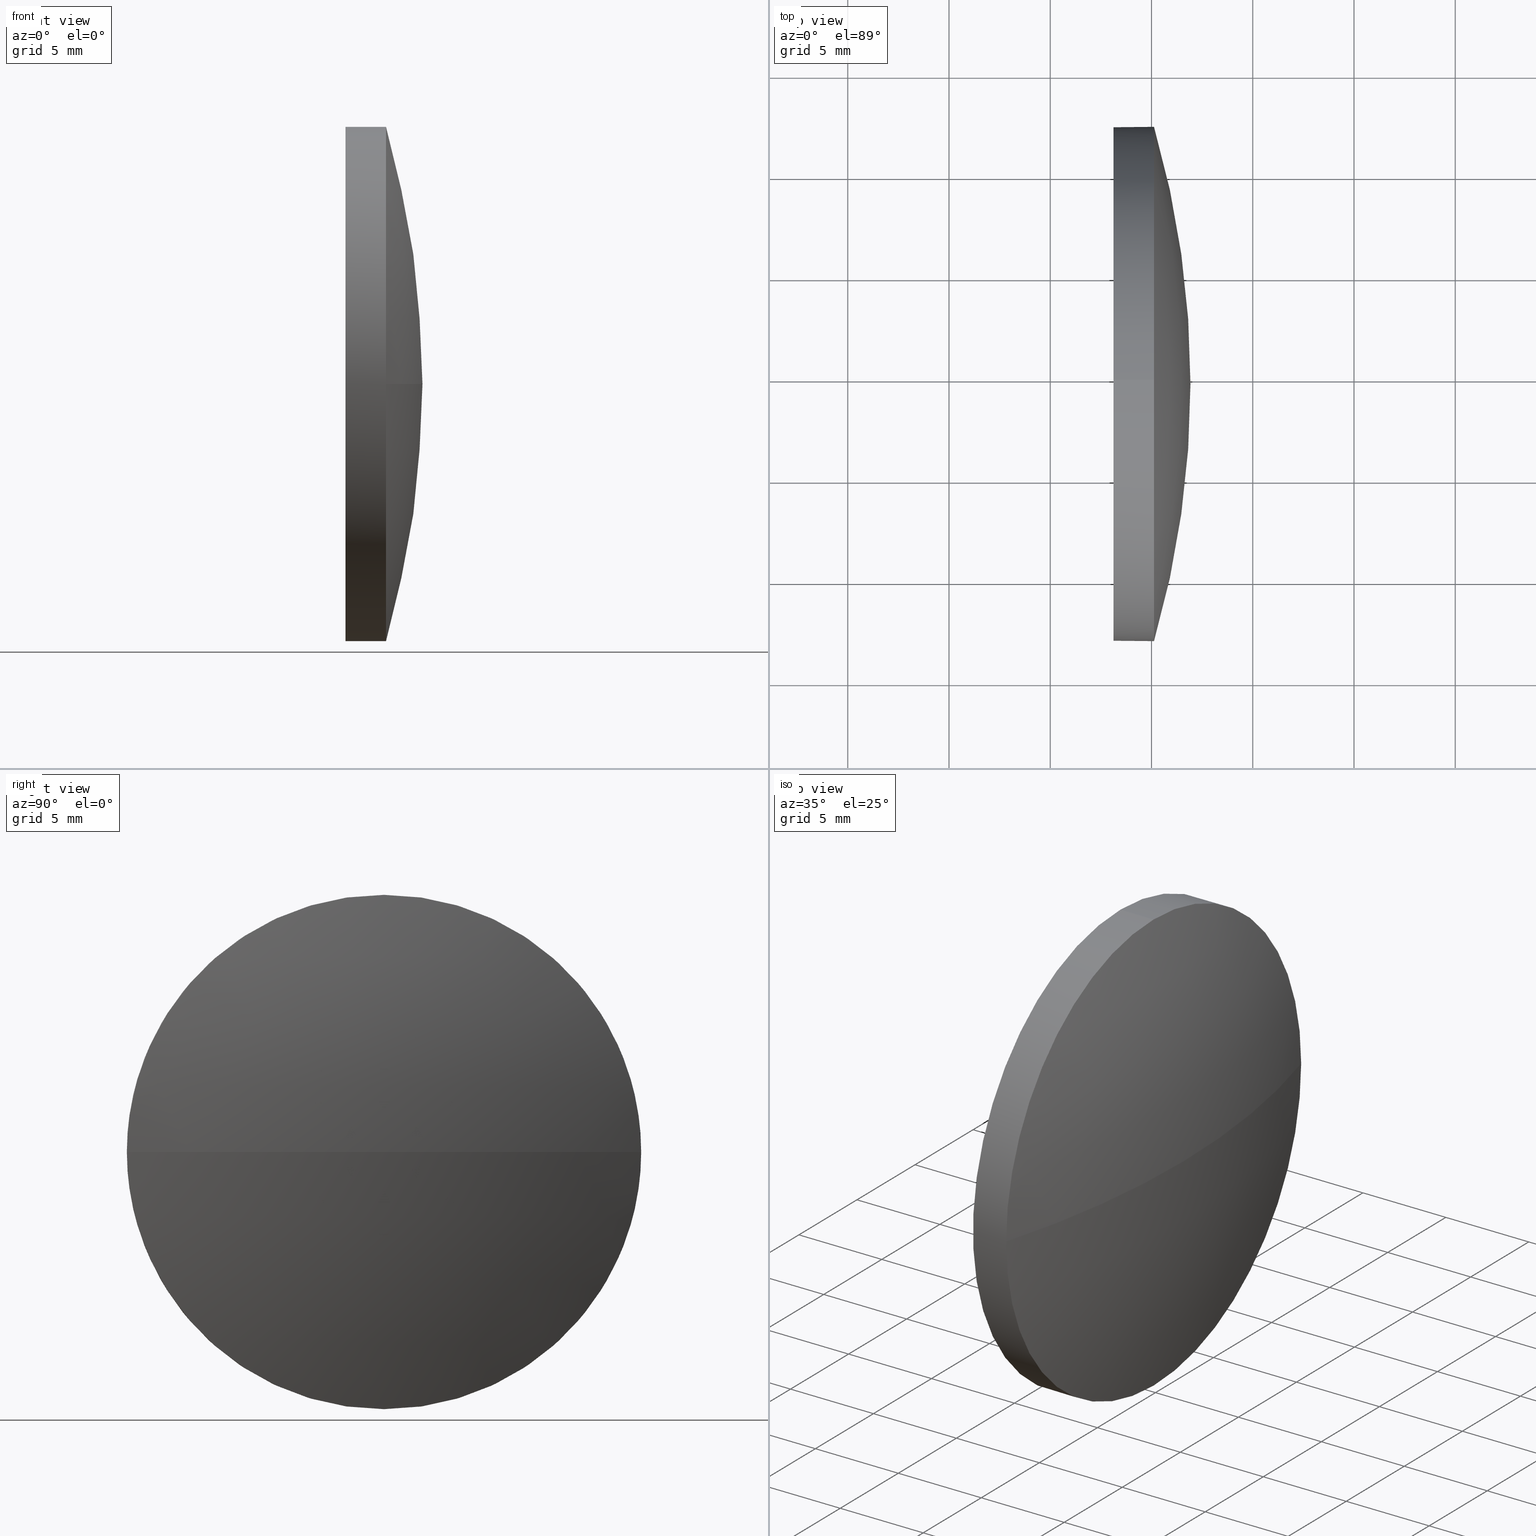
[diagram: canonical four-view strip — front | top / right | iso, engineering-drawing reading convention]
A machine part, canonical four-view strip (front | top / right | iso — engineering-drawing reading convention). The complete STEP part file that produces these views, byte-faithful:
ISO-10303-21;
HEADER;
FILE_DESCRIPTION (( 'STEP AP214' ),
    '1' );
FILE_NAME ('100376.STEP',
    '2019-06-04T06:53:25',
    ( '' ),
    ( '' ),
    'SwSTEP 2.0',
    'SolidWorks 2016',
    '' );
FILE_SCHEMA (( 'AUTOMOTIVE_DESIGN' ));
ENDSEC;

DATA;
#1 = ORIENTED_EDGE ( 'NONE', *, *, #17, .F. ) ;
#2 = EDGE_CURVE ( 'NONE', #21, #55, #76, .T. ) ;
#3 = ORIENTED_EDGE ( 'NONE', *, *, #102, .F. ) ;
#4 = FILL_AREA_STYLE_COLOUR ( '', #178 ) ;
#5 = AXIS2_PLACEMENT_3D ( 'NONE', #63, #95, #109 ) ;
#6 = PRESENTATION_STYLE_ASSIGNMENT (( #45 ) ) ;
#7 = ORIENTED_EDGE ( 'NONE', *, *, #2, .T. ) ;
#8 = STYLED_ITEM ( 'NONE', ( #6 ), #51 ) ;
#9 = CARTESIAN_POINT ( 'NONE',  ( 456.2206596790415500, 104.6700815255058900, 0.0000000000000000000 ) ) ;
#10 = CIRCLE ( 'NONE', #5, 12.70000000000000300 ) ;
#11 = EDGE_LOOP ( 'NONE', ( #162, #81 ) ) ;
#12 = CARTESIAN_POINT ( 'NONE',  ( 501.9234374568194400, 104.6700815255058900, 0.0000000000000000000 ) ) ;
#13 = ORIENTED_EDGE ( 'NONE', *, *, #131, .F. ) ;
#14 = DIRECTION ( 'NONE',  ( -1.000000000000000000, -0.0000000000000000000, -0.0000000000000000000 ) ) ;
#15 = ORIENTED_EDGE ( 'NONE', *, *, #2, .F. ) ;
#16 = UNCERTAINTY_MEASURE_WITH_UNIT (LENGTH_MEASURE( 1.000000000000000100E-005 ), #169, 'distance_accuracy_value', 'NONE');
#17 = EDGE_CURVE ( 'NONE', #21, #156, #134, .T. ) ;
#18 = AXIS2_PLACEMENT_3D ( 'NONE', #19, #161, #173 ) ;
#19 = CARTESIAN_POINT ( 'NONE',  ( 0.0000000000000000000, 0.0000000000000000000, 0.0000000000000000000 ) ) ;
#20 = VECTOR ( 'NONE', #56, 1000.000000000000000 ) ;
#21 = VERTEX_POINT ( 'NONE', #12 ) ;
#22 = DIRECTION ( 'NONE',  ( 0.0000000000000000000, 0.0000000000000000000, 1.000000000000000000 ) ) ;
#23 = CYLINDRICAL_SURFACE ( 'NONE', #130, 12.70000000000000300 ) ;
#24 = PRODUCT ( '100376', '100376', '', ( #69 ) ) ;
#25 = DIRECTION ( 'NONE',  ( 1.000000000000000000, 0.0000000000000000000, 0.0000000000000000000 ) ) ;
#26 = ORIENTED_EDGE ( 'NONE', *, *, #48, .T. ) ;
#27 = AXIS2_PLACEMENT_3D ( 'NONE', #185, #146, #113 ) ;
#28 = UNCERTAINTY_MEASURE_WITH_UNIT (LENGTH_MEASURE( 1.000000000000000100E-005 ), #31, 'distance_accuracy_value', 'NONE');
#29 = DIRECTION ( 'NONE',  ( -1.000000000000000000, -0.0000000000000000000, -0.0000000000000000000 ) ) ;
#30 = FILL_AREA_STYLE ('',( #4 ) ) ;
#31 =( LENGTH_UNIT ( ) NAMED_UNIT ( * ) SI_UNIT ( .MILLI., .METRE. ) );
#32 = AXIS2_PLACEMENT_3D ( 'NONE', #140, #111, #22 ) ;
#33 = ORIENTED_EDGE ( 'NONE', *, *, #90, .F. ) ;
#34 = AXIS2_PLACEMENT_3D ( 'NONE', #9, #163, #104 ) ;
#35 = DIRECTION ( 'NONE',  ( -1.000000000000000000, -0.0000000000000000000, -0.0000000000000000000 ) ) ;
#36 = UNCERTAINTY_MEASURE_WITH_UNIT (LENGTH_MEASURE( 1.000000000000000100E-005 ), #89, 'distance_accuracy_value', 'NONE');
#37 = ORIENTED_EDGE ( 'NONE', *, *, #48, .F. ) ;
#38 = PRODUCT_DEFINITION_SHAPE ( 'NONE', 'NONE',  #179 ) ;
#39 = SURFACE_STYLE_FILL_AREA ( #30 ) ;
#40 = DIRECTION ( 'NONE',  ( -1.000000000000000000, -0.0000000000000000000, -0.0000000000000000000 ) ) ;
#41 = DIRECTION ( 'NONE',  ( 0.0000000000000000000, 0.0000000000000000000, 1.000000000000000000 ) ) ;
#42 = CARTESIAN_POINT ( 'NONE',  ( 500.1234374568194300, 104.6700815255059400, -12.70000000000000300 ) ) ;
#43 = CARTESIAN_POINT ( 'NONE',  ( 492.4187639093645400, 104.6700815255059400, -12.70000000000000300 ) ) ;
#44 = SURFACE_STYLE_FILL_AREA ( #78 ) ;
#45 = SURFACE_STYLE_USAGE ( .BOTH. , #167 ) ;
#46 = DIRECTION ( 'NONE',  ( 0.0000000000000000000, 0.0000000000000000000, 1.000000000000000000 ) ) ;
#47 = CARTESIAN_POINT ( 'NONE',  ( 500.1234374568194300, 104.6700815255059400, 0.0000000000000000000 ) ) ;
#48 = EDGE_CURVE ( 'NONE', #55, #83, #10, .T. ) ;
#49 = DIRECTION ( 'NONE',  ( 0.0000000000000000000, 0.0000000000000000000, 1.000000000000000000 ) ) ;
#50 = ORIENTED_EDGE ( 'NONE', *, *, #181, .F. ) ;
#51 = ADVANCED_BREP_SHAPE_REPRESENTATION ( '100376', ( #72, #18 ), #119 ) ;
#52 = SPHERICAL_SURFACE ( 'NONE', #27, 45.70277777777791800 ) ;
#53 = ORIENTED_EDGE ( 'NONE', *, *, #121, .T. ) ;
#54 = CARTESIAN_POINT ( 'NONE',  ( 492.4187639093645400, 104.6700815255059400, 0.0000000000000000000 ) ) ;
#55 = VERTEX_POINT ( 'NONE', #61 ) ;
#56 = DIRECTION ( 'NONE',  ( -1.000000000000000000, -0.0000000000000000000, -0.0000000000000000000 ) ) ;
#57 = STYLED_ITEM ( 'NONE', ( #168 ), #72 ) ;
#58 = FACE_OUTER_BOUND ( 'NONE', #11, .T. ) ;
#59 = DIRECTION ( 'NONE',  ( -1.000000000000000000, -0.0000000000000000000, -0.0000000000000000000 ) ) ;
#60 = AXIS2_PLACEMENT_3D ( 'NONE', #114, #25, #145 ) ;
#61 = CARTESIAN_POINT ( 'NONE',  ( 500.1234374568194300, 91.97008152550587600, -1.555301434917139400E-015 ) ) ;
#62 = CYLINDRICAL_SURFACE ( 'NONE', #123, 12.70000000000000300 ) ;
#63 = CARTESIAN_POINT ( 'NONE',  ( 500.1234374568194300, 104.6700815255059400, 0.0000000000000000000 ) ) ;
#64 = PRODUCT_DEFINITION_CONTEXT ( 'detailed design', #67, 'design' ) ;
#65 = CIRCLE ( 'NONE', #96, 12.70000000000000300 ) ;
#66 = ORIENTED_EDGE ( 'NONE', *, *, #121, .F. ) ;
#67 = APPLICATION_CONTEXT ( 'automotive_design' ) ;
#68 = CARTESIAN_POINT ( 'NONE',  ( 492.4187639093645400, 104.6700815255059400, 0.0000000000000000000 ) ) ;
#69 = PRODUCT_CONTEXT ( 'NONE', #97, 'mechanical' ) ;
#70 = DIRECTION ( 'NONE',  ( -1.000000000000000000, -0.0000000000000000000, -0.0000000000000000000 ) ) ;
#71 = PRESENTATION_LAYER_ASSIGNMENT (  '', '', ( #57 ) ) ;
#72 = MANIFOLD_SOLID_BREP ( '��ת1', #112 ) ;
#73 = AXIS2_PLACEMENT_3D ( 'NONE', #141, #82, #149 ) ;
#74 = DIRECTION ( 'NONE',  ( 0.0000000000000000000, 0.0000000000000000000, 1.000000000000000000 ) ) ;
#75 = EDGE_LOOP ( 'NONE', ( #53, #147, #33, #50, #152 ) ) ;
#76 = CIRCLE ( 'NONE', #186, 45.70277777777792500 ) ;
#77 = ORIENTED_EDGE ( 'NONE', *, *, #181, .T. ) ;
#78 = FILL_AREA_STYLE ('',( #158 ) ) ;
#79 = CARTESIAN_POINT ( 'NONE',  ( 500.1234374568194300, 117.3700815255059500, 0.0000000000000000000 ) ) ;
#80 = EDGE_CURVE ( 'NONE', #83, #156, #108, .T. ) ;
#81 = ORIENTED_EDGE ( 'NONE', *, *, #87, .T. ) ;
#82 = DIRECTION ( 'NONE',  ( -1.000000000000000000, -0.0000000000000000000, -0.0000000000000000000 ) ) ;
#83 = VERTEX_POINT ( 'NONE', #137 ) ;
#84 = FACE_OUTER_BOUND ( 'NONE', #99, .T. ) ;
#85 = CARTESIAN_POINT ( 'NONE',  ( 456.2206596790415500, 104.6700815255058900, 0.0000000000000000000 ) ) ;
#86 = ORIENTED_EDGE ( 'NONE', *, *, #131, .T. ) ;
#87 = EDGE_CURVE ( 'NONE', #116, #182, #170, .T. ) ;
#88 = CARTESIAN_POINT ( 'NONE',  ( 498.1234374568193700, 104.6700815255059400, 12.70000000000000300 ) ) ;
#89 =( LENGTH_UNIT ( ) NAMED_UNIT ( * ) SI_UNIT ( .MILLI., .METRE. ) );
#90 = EDGE_CURVE ( 'NONE', #182, #116, #129, .T. ) ;
#91 = SPHERICAL_SURFACE ( 'NONE', #34, 45.70277777777791800 ) ;
#92 = ORIENTED_EDGE ( 'NONE', *, *, #17, .T. ) ;
#93 =( NAMED_UNIT ( * ) SI_UNIT ( $, .STERADIAN. ) SOLID_ANGLE_UNIT ( ) );
#94 = SURFACE_SIDE_STYLE ('',( #39 ) ) ;
#95 = DIRECTION ( 'NONE',  ( -1.000000000000000000, -0.0000000000000000000, -0.0000000000000000000 ) ) ;
#96 = AXIS2_PLACEMENT_3D ( 'NONE', #105, #14, #41 ) ;
#97 = APPLICATION_CONTEXT ( 'automotive_design' ) ;
#98 = CIRCLE ( 'NONE', #73, 12.70000000000000300 ) ;
#99 = EDGE_LOOP ( 'NONE', ( #15, #92, #144, #37 ) ) ;
#100 = ADVANCED_FACE ( 'NONE', ( #165 ), #62, .T. ) ;
#101 = VECTOR ( 'NONE', #59, 1000.000000000000000 ) ;
#102 = EDGE_CURVE ( 'NONE', #135, #116, #132, .T. ) ;
#103 = DIRECTION ( 'NONE',  ( 1.000000000000000000, 0.0000000000000000000, 0.0000000000000000000 ) ) ;
#104 = DIRECTION ( 'NONE',  ( 0.0000000000000000000, 1.000000000000000000, 0.0000000000000000000 ) ) ;
#105 = CARTESIAN_POINT ( 'NONE',  ( 500.1234374568194300, 104.6700815255059400, 0.0000000000000000000 ) ) ;
#106 = CARTESIAN_POINT ( 'NONE',  ( 492.4187639093645400, 104.6700815255059400, 12.70000000000000300 ) ) ;
#107 =( NAMED_UNIT ( * ) SI_UNIT ( $, .STERADIAN. ) SOLID_ANGLE_UNIT ( ) );
#108 = CIRCLE ( 'NONE', #128, 12.70000000000000300 ) ;
#109 = DIRECTION ( 'NONE',  ( 0.0000000000000000000, 0.0000000000000000000, 1.000000000000000000 ) ) ;
#110 = MECHANICAL_DESIGN_GEOMETRIC_PRESENTATION_REPRESENTATION (  '', ( #57 ), #117 ) ;
#111 = DIRECTION ( 'NONE',  ( -1.000000000000000000, -0.0000000000000000000, -0.0000000000000000000 ) ) ;
#112 = CLOSED_SHELL ( 'NONE', ( #100, #126, #180, #176, #125 ) ) ;
#113 = DIRECTION ( 'NONE',  ( 0.0000000000000000000, 1.000000000000000000, 0.0000000000000000000 ) ) ;
#114 = CARTESIAN_POINT ( 'NONE',  ( 498.1234374568193700, 104.6700815255059400, 0.0000000000000000000 ) ) ;
#115 = PLANE ( 'NONE',  #60 ) ;
#116 = VERTEX_POINT ( 'NONE', #164 ) ;
#117 =( GEOMETRIC_REPRESENTATION_CONTEXT ( 3 ) GLOBAL_UNCERTAINTY_ASSIGNED_CONTEXT ( ( #28 ) ) GLOBAL_UNIT_ASSIGNED_CONTEXT ( ( #31, #151, #107 ) ) REPRESENTATION_CONTEXT ( 'NONE', 'WORKASPACE' ) );
#118 = SHAPE_DEFINITION_REPRESENTATION ( #38, #51 ) ;
#119 =( GEOMETRIC_REPRESENTATION_CONTEXT ( 3 ) GLOBAL_UNCERTAINTY_ASSIGNED_CONTEXT ( ( #16 ) ) GLOBAL_UNIT_ASSIGNED_CONTEXT ( ( #169, #133, #120 ) ) REPRESENTATION_CONTEXT ( 'NONE', 'WORKASPACE' ) );
#120 =( NAMED_UNIT ( * ) SI_UNIT ( $, .STERADIAN. ) SOLID_ANGLE_UNIT ( ) );
#121 = EDGE_CURVE ( 'NONE', #156, #135, #65, .T. ) ;
#122 = SURFACE_STYLE_USAGE ( .BOTH. , #94 ) ;
#123 = AXIS2_PLACEMENT_3D ( 'NONE', #68, #70, #49 ) ;
#124 = EDGE_LOOP ( 'NONE', ( #1, #7, #13, #66 ) ) ;
#125 = ADVANCED_FACE ( 'NONE', ( #58 ), #115, .F. ) ;
#126 = ADVANCED_FACE ( 'NONE', ( #136 ), #52, .T. ) ;
#127 = CARTESIAN_POINT ( 'NONE',  ( 456.2206596790415500, 104.6700815255058900, 0.0000000000000000000 ) ) ;
#128 = AXIS2_PLACEMENT_3D ( 'NONE', #47, #29, #46 ) ;
#129 = CIRCLE ( 'NONE', #32, 12.70000000000000300 ) ;
#130 = AXIS2_PLACEMENT_3D ( 'NONE', #54, #40, #74 ) ;
#131 = EDGE_CURVE ( 'NONE', #135, #55, #98, .T. ) ;
#132 = LINE ( 'NONE', #43, #20 ) ;
#133 =( NAMED_UNIT ( * ) PLANE_ANGLE_UNIT ( ) SI_UNIT ( $, .RADIAN. ) );
#134 = CIRCLE ( 'NONE', #142, 45.70277777777792500 ) ;
#135 = VERTEX_POINT ( 'NONE', #42 ) ;
#136 = FACE_OUTER_BOUND ( 'NONE', #124, .T. ) ;
#137 = CARTESIAN_POINT ( 'NONE',  ( 500.1234374568194300, 104.6700815255059400, 12.70000000000000300 ) ) ;
#138 =( GEOMETRIC_REPRESENTATION_CONTEXT ( 3 ) GLOBAL_UNCERTAINTY_ASSIGNED_CONTEXT ( ( #36 ) ) GLOBAL_UNIT_ASSIGNED_CONTEXT ( ( #89, #148, #93 ) ) REPRESENTATION_CONTEXT ( 'NONE', 'WORKASPACE' ) );
#139 = LINE ( 'NONE', #106, #101 ) ;
#140 = CARTESIAN_POINT ( 'NONE',  ( 498.1234374568193700, 104.6700815255059400, 0.0000000000000000000 ) ) ;
#141 = CARTESIAN_POINT ( 'NONE',  ( 500.1234374568194300, 104.6700815255059400, 0.0000000000000000000 ) ) ;
#142 = AXIS2_PLACEMENT_3D ( 'NONE', #85, #184, #103 ) ;
#143 = FACE_OUTER_BOUND ( 'NONE', #172, .T. ) ;
#144 = ORIENTED_EDGE ( 'NONE', *, *, #80, .F. ) ;
#145 = DIRECTION ( 'NONE',  ( 0.0000000000000000000, 0.0000000000000000000, -1.000000000000000000 ) ) ;
#146 = DIRECTION ( 'NONE',  ( -0.0000000000000000000, 0.0000000000000000000, -1.000000000000000000 ) ) ;
#147 = ORIENTED_EDGE ( 'NONE', *, *, #102, .T. ) ;
#148 =( NAMED_UNIT ( * ) PLANE_ANGLE_UNIT ( ) SI_UNIT ( $, .RADIAN. ) );
#149 = DIRECTION ( 'NONE',  ( 0.0000000000000000000, 0.0000000000000000000, 1.000000000000000000 ) ) ;
#150 = ORIENTED_EDGE ( 'NONE', *, *, #87, .F. ) ;
#151 =( NAMED_UNIT ( * ) PLANE_ANGLE_UNIT ( ) SI_UNIT ( $, .RADIAN. ) );
#152 = ORIENTED_EDGE ( 'NONE', *, *, #80, .T. ) ;
#153 = DIRECTION ( 'NONE',  ( 0.0000000000000000000, 0.0000000000000000000, 1.000000000000000000 ) ) ;
#154 = DIRECTION ( 'NONE',  ( 0.0000000000000000000, 1.224646799147353200E-016, -1.000000000000000000 ) ) ;
#155 = DIRECTION ( 'NONE',  ( 0.0000000000000000000, 1.000000000000000000, 1.224646799147353000E-016 ) ) ;
#156 = VERTEX_POINT ( 'NONE', #79 ) ;
#157 = COLOUR_RGB ( '',1.000000000000000000, 1.000000000000000000, 1.000000000000000000 ) ;
#158 = FILL_AREA_STYLE_COLOUR ( '', #157 ) ;
#159 = MECHANICAL_DESIGN_GEOMETRIC_PRESENTATION_REPRESENTATION (  '', ( #8 ), #138 ) ;
#160 = PRODUCT_RELATED_PRODUCT_CATEGORY ( 'part', '', ( #24 ) ) ;
#161 = DIRECTION ( 'NONE',  ( 0.0000000000000000000, 0.0000000000000000000, 1.000000000000000000 ) ) ;
#162 = ORIENTED_EDGE ( 'NONE', *, *, #90, .T. ) ;
#163 = DIRECTION ( 'NONE',  ( -0.0000000000000000000, 0.0000000000000000000, -1.000000000000000000 ) ) ;
#164 = CARTESIAN_POINT ( 'NONE',  ( 498.1234374568193700, 104.6700815255059400, -12.70000000000000300 ) ) ;
#165 = FACE_OUTER_BOUND ( 'NONE', #75, .T. ) ;
#166 = AXIS2_PLACEMENT_3D ( 'NONE', #175, #35, #153 ) ;
#167 = SURFACE_SIDE_STYLE ('',( #44 ) ) ;
#168 = PRESENTATION_STYLE_ASSIGNMENT (( #122 ) ) ;
#169 =( LENGTH_UNIT ( ) NAMED_UNIT ( * ) SI_UNIT ( .MILLI., .METRE. ) );
#170 = CIRCLE ( 'NONE', #166, 12.70000000000000300 ) ;
#171 = PRODUCT_DEFINITION_FORMATION_WITH_SPECIFIED_SOURCE ( '�κ�', '', #24, .NOT_KNOWN. ) ;
#172 = EDGE_LOOP ( 'NONE', ( #3, #86, #26, #77, #150 ) ) ;
#173 = DIRECTION ( 'NONE',  ( 1.000000000000000000, 0.0000000000000000000, 0.0000000000000000000 ) ) ;
#174 = APPLICATION_PROTOCOL_DEFINITION ( 'draft international standard', 'automotive_design', 1998, #97 ) ;
#175 = CARTESIAN_POINT ( 'NONE',  ( 498.1234374568193700, 104.6700815255059400, 0.0000000000000000000 ) ) ;
#176 = ADVANCED_FACE ( 'NONE', ( #143 ), #23, .T. ) ;
#177 = APPLICATION_PROTOCOL_DEFINITION ( 'draft international standard', 'automotive_design', 1998, #67 ) ;
#178 = COLOUR_RGB ( '',1.000000000000000000, 1.000000000000000000, 1.000000000000000000 ) ;
#179 = PRODUCT_DEFINITION ( 'δ֪', '', #171, #64 ) ;
#180 = ADVANCED_FACE ( 'NONE', ( #84 ), #91, .T. ) ;
#181 = EDGE_CURVE ( 'NONE', #83, #182, #139, .T. ) ;
#182 = VERTEX_POINT ( 'NONE', #88 ) ;
#183 = PRESENTATION_LAYER_ASSIGNMENT (  '', '', ( #8 ) ) ;
#184 = DIRECTION ( 'NONE',  ( -0.0000000000000000000, 0.0000000000000000000, 1.000000000000000000 ) ) ;
#185 = CARTESIAN_POINT ( 'NONE',  ( 456.2206596790415500, 104.6700815255058900, 0.0000000000000000000 ) ) ;
#186 = AXIS2_PLACEMENT_3D ( 'NONE', #127, #154, #155 ) ;
ENDSEC;
END-ISO-10303-21;
